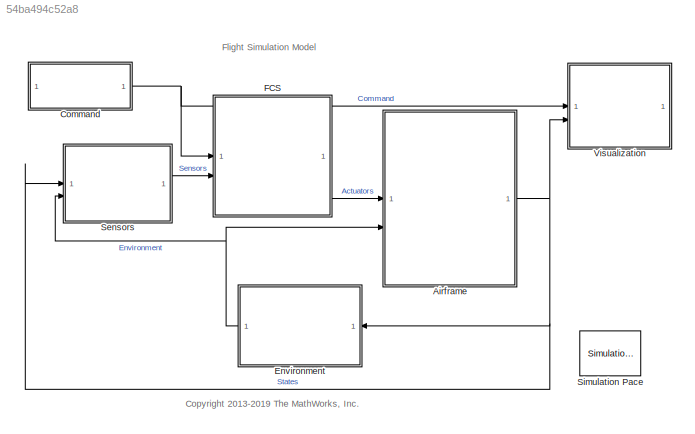
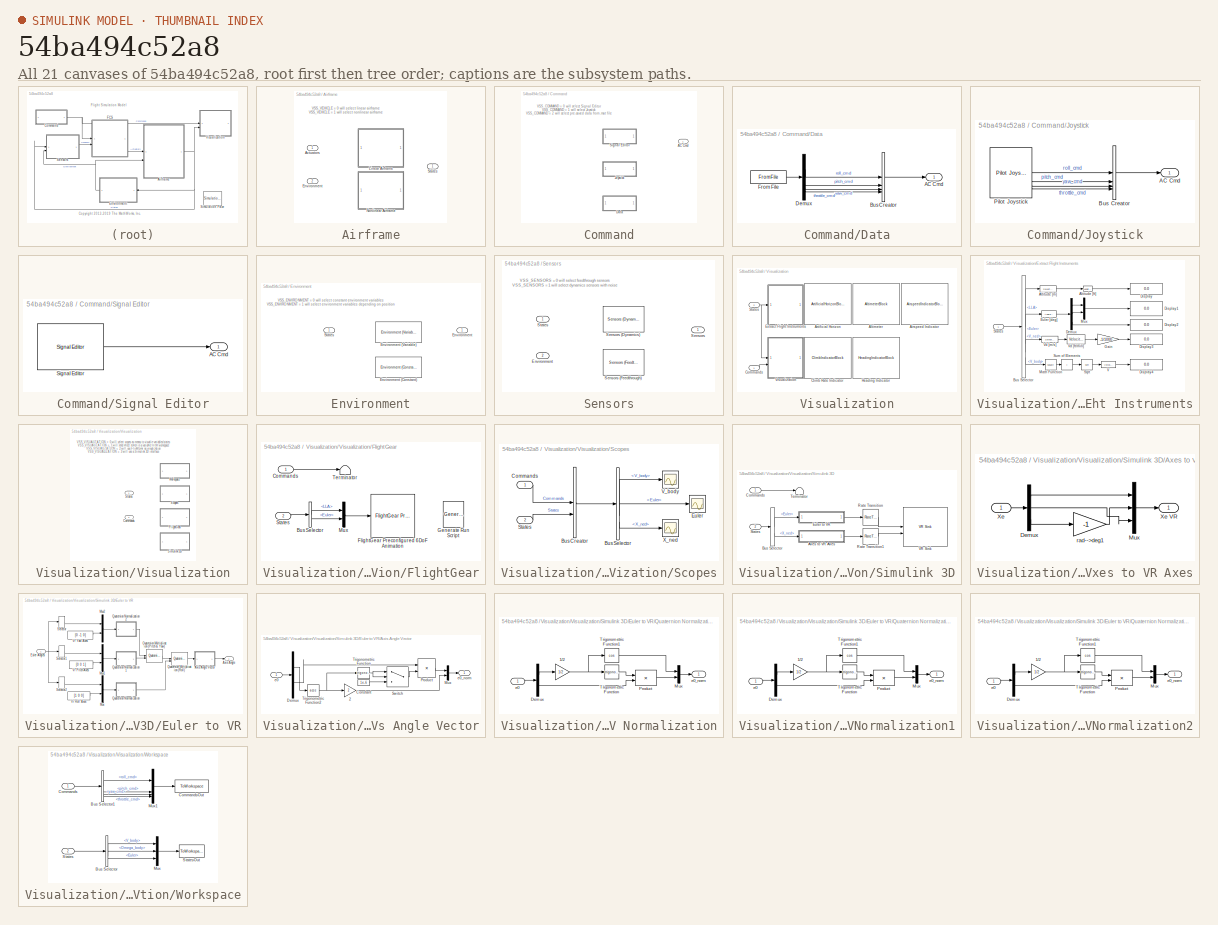
[diagram: thumbnail index - all 21 canvases of the model, root first then tree order]
MODEL slx_54ba494c52a8
KIND model
CONFIG AbsTol = auto
CONFIG EnableMultiTasking = on
CONFIG FixedStep = Ts
CONFIG MaxStep = auto
CONFIG MinStep = auto
CONFIG RelTol = 1e-3
CONFIG SampleTimeConstraint = Unconstrained
CONFIG SolverName = ode3
CONFIG StartTime = 0
CONFIG StopTime = 10
BLOCK [SubSystem] Airframe
  Variant = on
BLOCK [Inport] Airframe/Actuators
BLOCK [Inport] Airframe/Environment
  OutDataTypeStr = Bus: EnvironmentBus
  Port = 2
BLOCK [ModelReference] Airframe/Linear Airframe
  ModelNameDialog = linearAirframe.slx
  ModelReferenceVersion = 11.2
  VariantControl = VSS_VEHICLE_LINEAR
BLOCK [ModelReference] Airframe/Nonlinear Airframe
  ModelNameDialog = nonlinearAirframe.slx
  ModelReferenceVersion = 11.2
  VariantControl = VSS_VEHICLE_NONLINEAR
BLOCK [Outport] Airframe/States
  OutDataTypeStr = Bus: StatesBus
  VectorParamsAs1DForOutWhenUnconnected = off
BLOCK [SubSystem] Command
  Variant = on
BLOCK [Outport] Command/AC Cmd
  OutDataTypeStr = Bus: CommandBus
  VectorParamsAs1DForOutWhenUnconnected = off
BLOCK [SubSystem] Command/Data
  VariantControl = VSS_COMMAND_PRESAVED
BLOCK [Outport] Command/Data/AC Cmd
  OutDataTypeStr = Bus: CommandBus
  VectorParamsAs1DForOutWhenUnconnected = off
BLOCK [BusCreator] Command/Data/Bus Creator
  DisplayOption = bar
  InheritFromInputs = on
  Inputs = 4
  NonVirtualBus = on
  OutDataTypeStr = Bus: CommandBus
BLOCK [Demux] Command/Data/Demux
BLOCK [FromFile] Command/Data/From File
  FileName = cmdData.mat
  SampleTime = Ts
BLOCK [SubSystem] Command/Joystick
  VariantControl = VSS_COMMAND_JOYSTICK
BLOCK [Outport] Command/Joystick/AC Cmd
  OutDataTypeStr = Bus: CommandBus
  VectorParamsAs1DForOutWhenUnconnected = off
BLOCK [BusCreator] Command/Joystick/Bus Creator
  DisplayOption = bar
  InheritFromInputs = on
  Inputs = 4
  NonVirtualBus = on
  OutDataTypeStr = Bus: CommandBus
BLOCK [Reference] Command/Joystick/Pilot Joystick  REF=aerolibanimutils/Pilot Joystick
  SourceBlock = aerolibanimutils/Pilot Joystick
  SourceType = PilotJoystick
BLOCK [SubSystem] Command/Signal Editor
  VariantControl = VSS_COMMAND_SIGEDIT
BLOCK [Outport] Command/Signal Editor/AC Cmd
  OutDataTypeStr = Bus: CommandBus
  VectorParamsAs1DForOutWhenUnconnected = off
BLOCK [Reference] Command/Signal Editor/Signal Editor  REF=SignalEditorBlockLib/Signal Editor
  SourceBlock = SignalEditorBlockLib/Signal Editor
  SourceType = SignalEditor
  UserDataPersistent = on
BLOCK [SubSystem] Environment
  Variant = on
BLOCK [Outport] Environment/Environment
  OutDataTypeStr = Bus: EnvironmentBus
  VectorParamsAs1DForOutWhenUnconnected = off
BLOCK [Reference] Environment/Environment (Constant)  REF=environmentLibrary/Environment (Constant)
  SourceBlock = environmentLibrary/Environment (Constant)
  SourceType = SubSystem
BLOCK [Reference] Environment/Environment (Variable)  REF=environmentLibrary/Environment (Variable)
  SourceBlock = environmentLibrary/Environment (Variable)
  SourceType = SubSystem
BLOCK [Inport] Environment/States
  OutDataTypeStr = Bus: StatesBus
BLOCK [ModelReference] FCS
  ModelNameDialog = flightControlSystem.slx
  ModelReferenceVersion = 11.2
BLOCK [SubSystem] Sensors
  Variant = on
BLOCK [Inport] Sensors/Environment
  Port = 2
BLOCK [Outport] Sensors/Sensors
  VectorParamsAs1DForOutWhenUnconnected = off
BLOCK [Reference] Sensors/Sensors (Dynamics)  REF=sensorsLibrary/Sensors (Dynamics)
  SourceBlock = sensorsLibrary/Sensors (Dynamics)
BLOCK [Reference] Sensors/Sensors (Feedthrough)  REF=sensorsLibrary/Sensors (Feedthrough)
  SourceBlock = sensorsLibrary/Sensors (Feedthrough)
  SourceType = SubSystem
BLOCK [Inport] Sensors/States
BLOCK [Reference] Simulation Pace  REF=aerolibanimutils/Simulation Pace
  AttributesFormatString = %<SimulationPace> sec/sec
  Commented = on
  SourceBlock = aerolibanimutils/Simulation Pace
  SourceType = Simulation Pace
BLOCK [SubSystem] Visualization
BLOCK [AirspeedIndicatorBlock] Visualization/Airspeed Indicator
  LabelPosition = Hide
  ScaleMax = 9
  ScaleMin = 0
BLOCK [AltimeterBlock] Visualization/Altimeter
  LabelPosition = Hide
BLOCK [ArtificialHorizonBlock] Visualization/Artificial Horizon
  LabelPosition = Hide
BLOCK [ClimbIndicatorBlock] Visualization/Climb Rate Indicator
  LabelPosition = Hide
  ScaleMax = 1000
BLOCK [Inport] Visualization/Commands
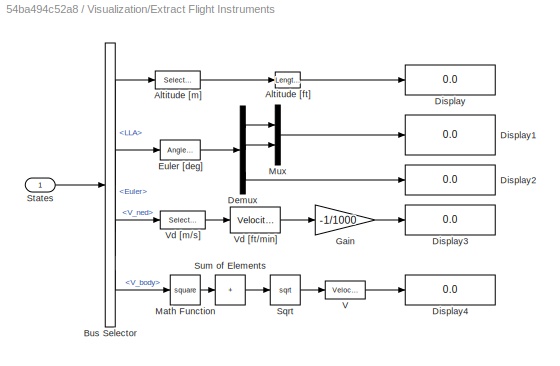
BLOCK [SubSystem] Visualization/Extract Flight Instruments
BLOCK [Reference] Visualization/Extract Flight Instruments/Altitude [ft]  REF=aerolibconvert2/Length Conversion
  SourceBlock = aerolibconvert2/Length Conversion
  SourceType = Length Conversion
BLOCK [Selector] Visualization/Extract Flight Instruments/Altitude [m]
  IndexOptions = Index vector (dialog)
  Indices = [3]
  InputPortWidth = 3
  OutputSizes = 1
BLOCK [BusSelector] Visualization/Extract Flight Instruments/Bus Selector
  OutputSignals = LLA,Euler,V_ned,V_body
BLOCK [Demux] Visualization/Extract Flight Instruments/Demux
  Outputs = 3
BLOCK [Display] Visualization/Extract Flight Instruments/Display
  Decimation = 1
BLOCK [Display] Visualization/Extract Flight Instruments/Display1
  Decimation = 1
BLOCK [Display] Visualization/Extract Flight Instruments/Display2
  Decimation = 1
BLOCK [Display] Visualization/Extract Flight Instruments/Display3
  Decimation = 1
BLOCK [Display] Visualization/Extract Flight Instruments/Display4
  Decimation = 1
BLOCK [Reference] Visualization/Extract Flight Instruments/Euler [deg]  REF=aerolibconvert2/Angle Conversion
  SourceBlock = aerolibconvert2/Angle Conversion
  SourceType = Angle Conversion
BLOCK [Gain] Visualization/Extract Flight Instruments/Gain
  Gain = -1/1000
BLOCK [Math] Visualization/Extract Flight Instruments/Math Function
  Operator = square
  SignedPower = on
BLOCK [Mux] Visualization/Extract Flight Instruments/Mux
  DisplayOption = bar
  Inputs = 2
BLOCK [Sqrt] Visualization/Extract Flight Instruments/Sqrt
BLOCK [Inport] Visualization/Extract Flight Instruments/States
BLOCK [Sum] Visualization/Extract Flight Instruments/Sum of Elements
  IconShape = rectangular
  Inputs = +
BLOCK [Reference] Visualization/Extract Flight Instruments/V  REF=aerolibconvert2/Velocity Conversion
  SourceBlock = aerolibconvert2/Velocity Conversion
  SourceType = Velocity Conversion
BLOCK [Reference] Visualization/Extract Flight Instruments/Vd [ft//min]  REF=aerolibconvert2/Velocity Conversion
  SourceBlock = aerolibconvert2/Velocity Conversion
  SourceType = Velocity Conversion
BLOCK [Selector] Visualization/Extract Flight Instruments/Vd [m//s]
  IndexOptions = Index vector (dialog)
  Indices = [3]
  InputPortWidth = 3
  OutputSizes = 1
BLOCK [HeadingIndicatorBlock] Visualization/Heading Indicator
  LabelPosition = Hide
BLOCK [Inport] Visualization/States
  Port = 2
BLOCK [SubSystem] Visualization/Visualization
  Variant = on
BLOCK [Inport] Visualization/Visualization/Commands
  OutDataTypeStr = Bus: CommandBus
  Port = 2
BLOCK [SubSystem] Visualization/Visualization/FlightGear
  VariantControl = VSS_VISUALIZATION_FLIGHTGEAR
BLOCK [BusSelector] Visualization/Visualization/FlightGear/Bus Selector
  OutputSignals = LLA,Euler
BLOCK [Inport] Visualization/Visualization/FlightGear/Commands
BLOCK [Reference] Visualization/Visualization/FlightGear/FlightGear Preconfigured 6DoF Animation  REF=aerolibfltsims/FlightGear
Preconfigured
6DoF Animation
  AttributesFormatString = Version Selected: %<xFlightGearVersion>
  SourceBlock = aerolibfltsims/FlightGear\nPreconfigured\n6DoF Animation
  SourceType = FlightGearQuick6DoFAnimation
BLOCK [Reference] Visualization/Visualization/FlightGear/Generate Run Script  REF=aerolibfltsims/Generate
Run Script
  SourceBlock = aerolibfltsims/Generate\nRun Script
  SourceType = Generate FlightGear Run Script
BLOCK [Mux] Visualization/Visualization/FlightGear/Mux
  DisplayOption = bar
  Inputs = 2
BLOCK [Inport] Visualization/Visualization/FlightGear/States
  Port = 2
BLOCK [Terminator] Visualization/Visualization/FlightGear/Terminator
BLOCK [SubSystem] Visualization/Visualization/Scopes
  VariantControl = VSS_VISUALIZATION_SCOPES
BLOCK [BusCreator] Visualization/Visualization/Scopes/Bus Creator
  DisplayOption = bar
  InheritFromInputs = on
  Inputs = 2
BLOCK [BusSelector] Visualization/Visualization/Scopes/Bus Selector
  OutputSignals = States.V_body,States.Euler,States.X_ned
BLOCK [Inport] Visualization/Visualization/Scopes/Commands
BLOCK [Scope] Visualization/Visualization/Scopes/Euler
  Floating = off
  NumInputPorts = 1
  ScopeSpecificationString = Simulink.scopes.TimeScopeBlockCfg('CurrentConfiguration', extmgr.ConfigurationSet(extmgr.Configuration('Core','General UI',true),extmgr.Configuration('Core','Source UI',true),extmgr.Configuration('Sources','WiredSimulink',true,'DataLoggingVariableName','ScopeData2','DataLoggingSaveFormat','StructureWithTime','DataLoggingDecimation','1'),extmgr.Configuration('Visuals','Time Domain',true,'Serialized...<+1593ch>
BLOCK [Inport] Visualization/Visualization/Scopes/States
  Port = 2
BLOCK [Scope] Visualization/Visualization/Scopes/V_body
  Floating = off
  NumInputPorts = 1
  ScopeSpecificationString = Simulink.scopes.TimeScopeBlockCfg('CurrentConfiguration', extmgr.ConfigurationSet(extmgr.Configuration('Core','General UI',true),extmgr.Configuration('Core','Source UI',true),extmgr.Configuration('Sources','WiredSimulink',true,'DataLoggingSaveFormat','StructureWithTime','DataLoggingDecimation','1'),extmgr.Configuration('Visuals','Time Domain',true,'SerializedDisplays',{struct('MinYLimReal','-2.968...<+1548ch>
BLOCK [Scope] Visualization/Visualization/Scopes/X_ned
  Floating = off
  NumInputPorts = 1
  ScopeSpecificationString = Simulink.scopes.TimeScopeBlockCfg('CurrentConfiguration', extmgr.ConfigurationSet(extmgr.Configuration('Core','General UI',true),extmgr.Configuration('Core','Source UI',true),extmgr.Configuration('Sources','WiredSimulink',true,'DataLoggingVariableName','ScopeData1','DataLoggingSaveFormat','StructureWithTime','DataLoggingDecimation','1'),extmgr.Configuration('Visuals','Time Domain',true,'Serialized...<+1593ch>
BLOCK [SubSystem] Visualization/Visualization/Simulink 3D
  VariantControl = VSS_VISUALIZATION_SL3D
BLOCK [SubSystem] Visualization/Visualization/Simulink 3D/Axes to VR Axes
BLOCK [Demux] Visualization/Visualization/Simulink 3D/Axes to VR Axes/Demux
  DisplayOption = none
  Outputs = 3
BLOCK [Mux] Visualization/Visualization/Simulink 3D/Axes to VR Axes/Mux
  DisplayOption = bar
  Inputs = 3
BLOCK [Inport] Visualization/Visualization/Simulink 3D/Axes to VR Axes/Xe
BLOCK [Outport] Visualization/Visualization/Simulink 3D/Axes to VR Axes/Xe VR
  VectorParamsAs1DForOutWhenUnconnected = off
BLOCK [Gain] Visualization/Visualization/Simulink 3D/Axes to VR Axes/rad-->deg1
  Gain = -1
  NameLocation = top
  OutDataTypeStr = Inherit: Same as input
  ParamDataTypeStr = Inherit: Same as input
  SaturateOnIntegerOverflow = on
BLOCK [BusSelector] Visualization/Visualization/Simulink 3D/Bus Selector
  OutputSignals = Euler,X_ned
BLOCK [Inport] Visualization/Visualization/Simulink 3D/Commands
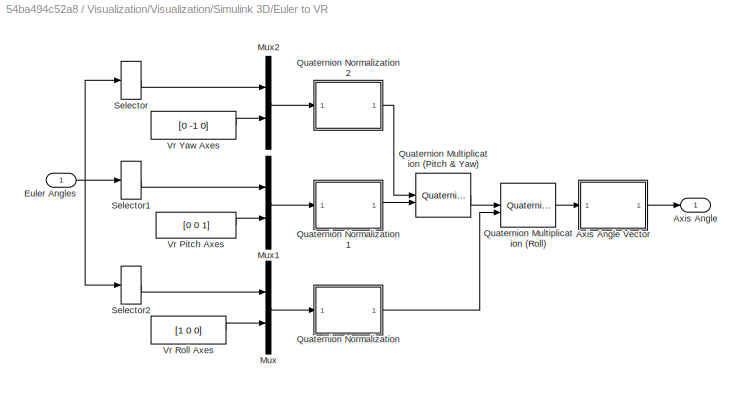
BLOCK [SubSystem] Visualization/Visualization/Simulink 3D/Euler to VR
BLOCK [Outport] Visualization/Visualization/Simulink 3D/Euler to VR/Axis Angle
  VectorParamsAs1DForOutWhenUnconnected = off
BLOCK [SubSystem] Visualization/Visualization/Simulink 3D/Euler to VR/Axis Angle Vector
BLOCK [Gain] Visualization/Visualization/Simulink 3D/Euler to VR/Axis Angle Vector/2
  Gain = 2
  OutDataTypeStr = Inherit: Same as input
  ParamDataTypeStr = Inherit: Same as input
  SaturateOnIntegerOverflow = on
BLOCK [Constant] Visualization/Visualization/Simulink 3D/Euler to VR/Axis Angle Vector/Constant
  Value = 1e-6
BLOCK [Demux] Visualization/Visualization/Simulink 3D/Euler to VR/Axis Angle Vector/Demux
  DisplayOption = none
  Outputs = [1 3 ]
BLOCK [Mux] Visualization/Visualization/Simulink 3D/Euler to VR/Axis Angle Vector/Mux
  DisplayOption = bar
  Inputs = 2
BLOCK [Product] Visualization/Visualization/Simulink 3D/Euler to VR/Axis Angle Vector/Product
  InputSameDT = on
  Inputs = */
  OutDataTypeStr = Inherit: Same as first input
  SaturateOnIntegerOverflow = on
BLOCK [Switch] Visualization/Visualization/Simulink 3D/Euler to VR/Axis Angle Vector/Switch
  Criteria = u2 ~= 0
  InputSameDT = off
  SaturateOnIntegerOverflow = off
BLOCK [Trigonometry] Visualization/Visualization/Simulink 3D/Euler to VR/Axis Angle Vector/Trigonometric Function
BLOCK [Trigonometry] Visualization/Visualization/Simulink 3D/Euler to VR/Axis Angle Vector/Trigonometric Function2
  Operator = acos
BLOCK [Inport] Visualization/Visualization/Simulink 3D/Euler to VR/Axis Angle Vector/e0
BLOCK [Outport] Visualization/Visualization/Simulink 3D/Euler to VR/Axis Angle Vector/e0_norm
  VectorParamsAs1DForOutWhenUnconnected = off
BLOCK [Inport] Visualization/Visualization/Simulink 3D/Euler to VR/Euler Angles
BLOCK [Mux] Visualization/Visualization/Simulink 3D/Euler to VR/Mux
  DisplayOption = bar
  Inputs = 2
BLOCK [Mux] Visualization/Visualization/Simulink 3D/Euler to VR/Mux1
  DisplayOption = bar
  Inputs = 2
BLOCK [Mux] Visualization/Visualization/Simulink 3D/Euler to VR/Mux2
  DisplayOption = bar
  Inputs = 2
BLOCK [Reference] Visualization/Visualization/Simulink 3D/Euler to VR/Quaternion Multiplication (Pitch & Yaw)  REF=aerolibutil/Quaternion
Multiplication
  SourceBlock = aerolibutil/Quaternion\nMultiplication
  SourceType = Quaternion Multiplication
BLOCK [Reference] Visualization/Visualization/Simulink 3D/Euler to VR/Quaternion Multiplication (Roll)  REF=aerolibutil/Quaternion
Multiplication
  SourceBlock = aerolibutil/Quaternion\nMultiplication
  SourceType = Quaternion Multiplication
BLOCK [SubSystem] Visualization/Visualization/Simulink 3D/Euler to VR/Quaternion Normalization
BLOCK [Gain] Visualization/Visualization/Simulink 3D/Euler to VR/Quaternion Normalization/1//2
  Gain = 1/2
  OutDataTypeStr = Inherit: Same as input
  ParamDataTypeStr = Inherit: Same as input
  SaturateOnIntegerOverflow = on
BLOCK [Demux] Visualization/Visualization/Simulink 3D/Euler to VR/Quaternion Normalization/Demux
  DisplayOption = none
  Outputs = [1 3]
BLOCK [Mux] Visualization/Visualization/Simulink 3D/Euler to VR/Quaternion Normalization/Mux
  DisplayOption = bar
  Inputs = 2
BLOCK [Product] Visualization/Visualization/Simulink 3D/Euler to VR/Quaternion Normalization/Product
  InputSameDT = on
  OutDataTypeStr = Inherit: Same as first input
  SaturateOnIntegerOverflow = on
BLOCK [Trigonometry] Visualization/Visualization/Simulink 3D/Euler to VR/Quaternion Normalization/Trigonometric Function
BLOCK [Trigonometry] Visualization/Visualization/Simulink 3D/Euler to VR/Quaternion Normalization/Trigonometric Function1
  Operator = cos
BLOCK [Inport] Visualization/Visualization/Simulink 3D/Euler to VR/Quaternion Normalization/e0
BLOCK [Outport] Visualization/Visualization/Simulink 3D/Euler to VR/Quaternion Normalization/e0_norm
  VectorParamsAs1DForOutWhenUnconnected = off
BLOCK [SubSystem] Visualization/Visualization/Simulink 3D/Euler to VR/Quaternion Normalization1
BLOCK [Gain] Visualization/Visualization/Simulink 3D/Euler to VR/Quaternion Normalization1/1//2
  Gain = 1/2
  OutDataTypeStr = Inherit: Same as input
  ParamDataTypeStr = Inherit: Same as input
  SaturateOnIntegerOverflow = on
BLOCK [Demux] Visualization/Visualization/Simulink 3D/Euler to VR/Quaternion Normalization1/Demux
  DisplayOption = none
  Outputs = [1 3]
BLOCK [Mux] Visualization/Visualization/Simulink 3D/Euler to VR/Quaternion Normalization1/Mux
  DisplayOption = bar
  Inputs = 2
BLOCK [Product] Visualization/Visualization/Simulink 3D/Euler to VR/Quaternion Normalization1/Product
  InputSameDT = on
  OutDataTypeStr = Inherit: Same as first input
  SaturateOnIntegerOverflow = on
BLOCK [Trigonometry] Visualization/Visualization/Simulink 3D/Euler to VR/Quaternion Normalization1/Trigonometric Function
BLOCK [Trigonometry] Visualization/Visualization/Simulink 3D/Euler to VR/Quaternion Normalization1/Trigonometric Function1
  Operator = cos
BLOCK [Inport] Visualization/Visualization/Simulink 3D/Euler to VR/Quaternion Normalization1/e0
BLOCK [Outport] Visualization/Visualization/Simulink 3D/Euler to VR/Quaternion Normalization1/e0_norm
  VectorParamsAs1DForOutWhenUnconnected = off
BLOCK [SubSystem] Visualization/Visualization/Simulink 3D/Euler to VR/Quaternion Normalization2
BLOCK [Gain] Visualization/Visualization/Simulink 3D/Euler to VR/Quaternion Normalization2/1//2
  Gain = 1/2
  OutDataTypeStr = Inherit: Same as input
  ParamDataTypeStr = Inherit: Same as input
  SaturateOnIntegerOverflow = on
BLOCK [Demux] Visualization/Visualization/Simulink 3D/Euler to VR/Quaternion Normalization2/Demux
  DisplayOption = none
  Outputs = [1 3]
BLOCK [Mux] Visualization/Visualization/Simulink 3D/Euler to VR/Quaternion Normalization2/Mux
  DisplayOption = bar
  Inputs = 2
BLOCK [Product] Visualization/Visualization/Simulink 3D/Euler to VR/Quaternion Normalization2/Product
  InputSameDT = on
  OutDataTypeStr = Inherit: Same as first input
  SaturateOnIntegerOverflow = on
BLOCK [Trigonometry] Visualization/Visualization/Simulink 3D/Euler to VR/Quaternion Normalization2/Trigonometric Function
BLOCK [Trigonometry] Visualization/Visualization/Simulink 3D/Euler to VR/Quaternion Normalization2/Trigonometric Function1
  Operator = cos
BLOCK [Inport] Visualization/Visualization/Simulink 3D/Euler to VR/Quaternion Normalization2/e0
BLOCK [Outport] Visualization/Visualization/Simulink 3D/Euler to VR/Quaternion Normalization2/e0_norm
  VectorParamsAs1DForOutWhenUnconnected = off
BLOCK [Selector] Visualization/Visualization/Simulink 3D/Euler to VR/Selector
  IndexOptions = Index vector (dialog)
  Indices = [3]
  InputPortWidth = 3
  OutputSizes = 1
BLOCK [Selector] Visualization/Visualization/Simulink 3D/Euler to VR/Selector1
  IndexOptions = Index vector (dialog)
  Indices = [2]
  InputPortWidth = 3
  OutputSizes = 1
BLOCK [Selector] Visualization/Visualization/Simulink 3D/Euler to VR/Selector2
  IndexOptions = Index vector (dialog)
  Indices = [1]
  InputPortWidth = 3
  OutputSizes = 1
BLOCK [Constant] Visualization/Visualization/Simulink 3D/Euler to VR/Vr Pitch Axes
  NameLocation = top
  Value = [0 0 1]
BLOCK [Constant] Visualization/Visualization/Simulink 3D/Euler to VR/Vr Roll Axes
  NameLocation = top
  Value = [1 0 0]
BLOCK [Constant] Visualization/Visualization/Simulink 3D/Euler to VR/Vr Yaw Axes
  Value = [0 -1 0]
BLOCK [RateTransition] Visualization/Visualization/Simulink 3D/Rate Transition
BLOCK [RateTransition] Visualization/Visualization/Simulink 3D/Rate Transition1
BLOCK [Inport] Visualization/Visualization/Simulink 3D/States
  Port = 2
BLOCK [Terminator] Visualization/Visualization/Simulink 3D/Terminator
BLOCK [Reference] Visualization/Visualization/Simulink 3D/VR Sink  REF=vrlib/VR Sink
  InstantiateOnLoad = on
  SourceBlock = vrlib/VR Sink
  SourceType = Virtual Reality Sink
BLOCK [Inport] Visualization/Visualization/States
  OutDataTypeStr = Bus: StatesBus
BLOCK [SubSystem] Visualization/Visualization/Workspace
  VariantControl = VSS_VISUALIZATION_WORKSPACE
BLOCK [BusSelector] Visualization/Visualization/Workspace/Bus Selector
  OutputSignals = V_body,Omega_body,Euler
BLOCK [BusSelector] Visualization/Visualization/Workspace/Bus Selector1
  OutputSignals = roll_cmd,pitch_cmd,yaw_cmd,throttle_cmd
BLOCK [Inport] Visualization/Visualization/Workspace/Commands
BLOCK [ToWorkspace] Visualization/Visualization/Workspace/CommandsOut
  MaxDataPoints = inf
  SampleTime = -1
  SaveFormat = Structure With Time
  VariableName = CommandsOut
BLOCK [Mux] Visualization/Visualization/Workspace/Mux
  DisplayOption = bar
  Inputs = 3
BLOCK [Mux] Visualization/Visualization/Workspace/Mux1
  DisplayOption = bar
BLOCK [Inport] Visualization/Visualization/Workspace/States
  Port = 2
BLOCK [ToWorkspace] Visualization/Visualization/Workspace/StatesOut
  MaxDataPoints = inf
  SampleTime = -1
  SaveFormat = Structure With Time
  VariableName = statesOut
ANNOTATION (root): <copyright redacted>
ANNOTATION (root): Flight Simulation Model
ANNOTATION Airframe: VSS_VEHICLE = 0 will select linear airframe VSS_VEHICLE = 1 will select nonlinear airframe
ANNOTATION Command: VSS_COMMAND = 0 will select Signal Editor VSS_COMMAND = 1 will select Joystick VSS_COMMAND = 2 will select pre-saved data from .mat file
ANNOTATION Environment: VSS_ENVIRONMENT = 0 will select constant environment variables VSS_ENVIRONMENT = 1 will select environment variables depending on position
ANNOTATION Sensors: VSS_SENSORS = 0 will select feedthrough sensors VSS_SENSORS = 1 will select dynamics sensors with noise
ANNOTATION Visualization/Visualization: VSS_VISUALIZATION = 0 will select scopes as means to visualie variables/states VSS_VISUALIZATION = 1 will send select states in a variable to the workspace VSS_VISUALIZATION = 2 will use FlightGear as visualization VSS_VISUALIZATION = 3 will use a Simulink 3D interface
NET Airframe:1 -> Environment:1, Sensors:1, Visualization:2
LINE Command/Data/Bus Creator:1 -> Command/Data/AC Cmd:1
LINE Command/Data/Demux:1 -> Command/Data/Bus Creator:1
LINE Command/Data/Demux:2 -> Command/Data/Bus Creator:2
LINE Command/Data/Demux:3 -> Command/Data/Bus Creator:3
LINE Command/Data/Demux:4 -> Command/Data/Bus Creator:4
LINE Command/Data/From File:1 -> Command/Data/Demux:1
LINE Command/Joystick/Bus Creator:1 -> Command/Joystick/AC Cmd:1
LINE Command/Joystick/Pilot Joystick:1 -> Command/Joystick/Bus Creator:1
LINE Command/Joystick/Pilot Joystick:2 -> Command/Joystick/Bus Creator:2
LINE Command/Joystick/Pilot Joystick:3 -> Command/Joystick/Bus Creator:3
LINE Command/Joystick/Pilot Joystick:4 -> Command/Joystick/Bus Creator:4
LINE Command/Signal Editor/Signal Editor:1 -> Command/Signal Editor/AC Cmd:1
NET Command:1 -> FCS:1, Visualization:1
NET Environment:1 -> Airframe:2, Sensors:2
LINE FCS:1 -> Airframe:1
LINE Sensors:1 -> FCS:2
LINE Visualization/Commands:1 -> Visualization/Visualization:2
LINE Visualization/Extract Flight Instruments/Altitude [ft]:1 -> Visualization/Extract Flight Instruments/Display:1
LINE Visualization/Extract Flight Instruments/Altitude [m]:1 -> Visualization/Extract Flight Instruments/Altitude [ft]:1
LINE Visualization/Extract Flight Instruments/Bus Selector:1 -> Visualization/Extract Flight Instruments/Altitude [m]:1
LINE Visualization/Extract Flight Instruments/Bus Selector:2 -> Visualization/Extract Flight Instruments/Euler [deg]:1
LINE Visualization/Extract Flight Instruments/Bus Selector:3 -> Visualization/Extract Flight Instruments/Vd [m//s]:1
LINE Visualization/Extract Flight Instruments/Bus Selector:4 -> Visualization/Extract Flight Instruments/Math Function:1
LINE Visualization/Extract Flight Instruments/Demux:1 -> Visualization/Extract Flight Instruments/Mux:1
LINE Visualization/Extract Flight Instruments/Demux:2 -> Visualization/Extract Flight Instruments/Mux:2
LINE Visualization/Extract Flight Instruments/Demux:3 -> Visualization/Extract Flight Instruments/Display2:1
LINE Visualization/Extract Flight Instruments/Euler [deg]:1 -> Visualization/Extract Flight Instruments/Demux:1
LINE Visualization/Extract Flight Instruments/Gain:1 -> Visualization/Extract Flight Instruments/Display3:1
LINE Visualization/Extract Flight Instruments/Math Function:1 -> Visualization/Extract Flight Instruments/Sum of Elements:1
LINE Visualization/Extract Flight Instruments/Mux:1 -> Visualization/Extract Flight Instruments/Display1:1
LINE Visualization/Extract Flight Instruments/Sqrt:1 -> Visualization/Extract Flight Instruments/V:1
LINE Visualization/Extract Flight Instruments/States:1 -> Visualization/Extract Flight Instruments/Bus Selector:1
LINE Visualization/Extract Flight Instruments/Sum of Elements:1 -> Visualization/Extract Flight Instruments/Sqrt:1
LINE Visualization/Extract Flight Instruments/V:1 -> Visualization/Extract Flight Instruments/Display4:1
LINE Visualization/Extract Flight Instruments/Vd [ft//min]:1 -> Visualization/Extract Flight Instruments/Gain:1
LINE Visualization/Extract Flight Instruments/Vd [m//s]:1 -> Visualization/Extract Flight Instruments/Vd [ft//min]:1
NET Visualization/States:1 -> Visualization/Extract Flight Instruments:1, Visualization/Visualization:1
LINE Visualization/Visualization/FlightGear/Bus Selector:1 -> Visualization/Visualization/FlightGear/Mux:1
LINE Visualization/Visualization/FlightGear/Bus Selector:2 -> Visualization/Visualization/FlightGear/Mux:2
LINE Visualization/Visualization/FlightGear/Commands:1 -> Visualization/Visualization/FlightGear/Terminator:1
LINE Visualization/Visualization/FlightGear/Mux:1 -> Visualization/Visualization/FlightGear/FlightGear Preconfigured 6DoF Animation:1
LINE Visualization/Visualization/FlightGear/States:1 -> Visualization/Visualization/FlightGear/Bus Selector:1
LINE Visualization/Visualization/Scopes/Bus Creator:1 -> Visualization/Visualization/Scopes/Bus Selector:1
LINE Visualization/Visualization/Scopes/Bus Selector:1 -> Visualization/Visualization/Scopes/V_body:1
LINE Visualization/Visualization/Scopes/Bus Selector:2 -> Visualization/Visualization/Scopes/Euler:1
LINE Visualization/Visualization/Scopes/Bus Selector:3 -> Visualization/Visualization/Scopes/X_ned:1
LINE Visualization/Visualization/Scopes/Commands:1 -> Visualization/Visualization/Scopes/Bus Creator:1
LINE Visualization/Visualization/Scopes/States:1 -> Visualization/Visualization/Scopes/Bus Creator:2
LINE Visualization/Visualization/Simulink 3D/Axes to VR Axes/Demux:1 -> Visualization/Visualization/Simulink 3D/Axes to VR Axes/Mux:1
LINE Visualization/Visualization/Simulink 3D/Axes to VR Axes/Demux:2 -> Visualization/Visualization/Simulink 3D/Axes to VR Axes/Mux:3
LINE Visualization/Visualization/Simulink 3D/Axes to VR Axes/Demux:3 -> Visualization/Visualization/Simulink 3D/Axes to VR Axes/rad-->deg1:1
LINE Visualization/Visualization/Simulink 3D/Axes to VR Axes/Mux:1 -> Visualization/Visualization/Simulink 3D/Axes to VR Axes/Xe VR:1
LINE Visualization/Visualization/Simulink 3D/Axes to VR Axes/Xe:1 -> Visualization/Visualization/Simulink 3D/Axes to VR Axes/Demux:1
LINE Visualization/Visualization/Simulink 3D/Axes to VR Axes/rad-->deg1:1 -> Visualization/Visualization/Simulink 3D/Axes to VR Axes/Mux:2
LINE Visualization/Visualization/Simulink 3D/Axes to VR Axes:1 -> Visualization/Visualization/Simulink 3D/Rate Transition1:1
LINE Visualization/Visualization/Simulink 3D/Bus Selector:1 -> Visualization/Visualization/Simulink 3D/Euler to VR:1
LINE Visualization/Visualization/Simulink 3D/Bus Selector:2 -> Visualization/Visualization/Simulink 3D/Axes to VR Axes:1
LINE Visualization/Visualization/Simulink 3D/Commands:1 -> Visualization/Visualization/Simulink 3D/Terminator:1
LINE Visualization/Visualization/Simulink 3D/Euler to VR/Axis Angle Vector/2:1 -> Visualization/Visualization/Simulink 3D/Euler to VR/Axis Angle Vector/Mux:2
LINE Visualization/Visualization/Simulink 3D/Euler to VR/Axis Angle Vector/Constant:1 -> Visualization/Visualization/Simulink 3D/Euler to VR/Axis Angle Vector/Switch:3
LINE Visualization/Visualization/Simulink 3D/Euler to VR/Axis Angle Vector/Demux:1 -> Visualization/Visualization/Simulink 3D/Euler to VR/Axis Angle Vector/Trigonometric Function2:1
LINE Visualization/Visualization/Simulink 3D/Euler to VR/Axis Angle Vector/Demux:2 -> Visualization/Visualization/Simulink 3D/Euler to VR/Axis Angle Vector/Product:1
LINE Visualization/Visualization/Simulink 3D/Euler to VR/Axis Angle Vector/Mux:1 -> Visualization/Visualization/Simulink 3D/Euler to VR/Axis Angle Vector/e0_norm:1
LINE Visualization/Visualization/Simulink 3D/Euler to VR/Axis Angle Vector/Product:1 -> Visualization/Visualization/Simulink 3D/Euler to VR/Axis Angle Vector/Mux:1
LINE Visualization/Visualization/Simulink 3D/Euler to VR/Axis Angle Vector/Switch:1 -> Visualization/Visualization/Simulink 3D/Euler to VR/Axis Angle Vector/Product:2
NET Visualization/Visualization/Simulink 3D/Euler to VR/Axis Angle Vector/Trigonometric Function2:1 -> Visualization/Visualization/Simulink 3D/Euler to VR/Axis Angle Vector/2:1, Visualization/Visualization/Simulink 3D/Euler to VR/Axis Angle Vector/Trigonometric Function:1
NET Visualization/Visualization/Simulink 3D/Euler to VR/Axis Angle Vector/Trigonometric Function:1 -> Visualization/Visualization/Simulink 3D/Euler to VR/Axis Angle Vector/Switch:1, Visualization/Visualization/Simulink 3D/Euler to VR/Axis Angle Vector/Switch:2
LINE Visualization/Visualization/Simulink 3D/Euler to VR/Axis Angle Vector/e0:1 -> Visualization/Visualization/Simulink 3D/Euler to VR/Axis Angle Vector/Demux:1
LINE Visualization/Visualization/Simulink 3D/Euler to VR/Axis Angle Vector:1 -> Visualization/Visualization/Simulink 3D/Euler to VR/Axis Angle:1
NET Visualization/Visualization/Simulink 3D/Euler to VR/Euler Angles:1 -> Visualization/Visualization/Simulink 3D/Euler to VR/Selector1:1, Visualization/Visualization/Simulink 3D/Euler to VR/Selector2:1, Visualization/Visualization/Simulink 3D/Euler to VR/Selector:1
LINE Visualization/Visualization/Simulink 3D/Euler to VR/Mux1:1 -> Visualization/Visualization/Simulink 3D/Euler to VR/Quaternion Normalization1:1
LINE Visualization/Visualization/Simulink 3D/Euler to VR/Mux2:1 -> Visualization/Visualization/Simulink 3D/Euler to VR/Quaternion Normalization2:1
LINE Visualization/Visualization/Simulink 3D/Euler to VR/Mux:1 -> Visualization/Visualization/Simulink 3D/Euler to VR/Quaternion Normalization:1
LINE Visualization/Visualization/Simulink 3D/Euler to VR/Quaternion Multiplication (Pitch & Yaw):1 -> Visualization/Visualization/Simulink 3D/Euler to VR/Quaternion Multiplication (Roll):1
LINE Visualization/Visualization/Simulink 3D/Euler to VR/Quaternion Multiplication (Roll):1 -> Visualization/Visualization/Simulink 3D/Euler to VR/Axis Angle Vector:1
NET Visualization/Visualization/Simulink 3D/Euler to VR/Quaternion Normalization/1//2:1 -> Visualization/Visualization/Simulink 3D/Euler to VR/Quaternion Normalization/Trigonometric Function1:1, Visualization/Visualization/Simulink 3D/Euler to VR/Quaternion Normalization/Trigonometric Function:1
LINE Visualization/Visualization/Simulink 3D/Euler to VR/Quaternion Normalization/Demux:1 -> Visualization/Visualization/Simulink 3D/Euler to VR/Quaternion Normalization/1//2:1
LINE Visualization/Visualization/Simulink 3D/Euler to VR/Quaternion Normalization/Demux:2 -> Visualization/Visualization/Simulink 3D/Euler to VR/Quaternion Normalization/Product:2
LINE Visualization/Visualization/Simulink 3D/Euler to VR/Quaternion Normalization/Mux:1 -> Visualization/Visualization/Simulink 3D/Euler to VR/Quaternion Normalization/e0_norm:1
LINE Visualization/Visualization/Simulink 3D/Euler to VR/Quaternion Normalization/Product:1 -> Visualization/Visualization/Simulink 3D/Euler to VR/Quaternion Normalization/Mux:2
LINE Visualization/Visualization/Simulink 3D/Euler to VR/Quaternion Normalization/Trigonometric Function1:1 -> Visualization/Visualization/Simulink 3D/Euler to VR/Quaternion Normalization/Mux:1
LINE Visualization/Visualization/Simulink 3D/Euler to VR/Quaternion Normalization/Trigonometric Function:1 -> Visualization/Visualization/Simulink 3D/Euler to VR/Quaternion Normalization/Product:1
LINE Visualization/Visualization/Simulink 3D/Euler to VR/Quaternion Normalization/e0:1 -> Visualization/Visualization/Simulink 3D/Euler to VR/Quaternion Normalization/Demux:1
NET Visualization/Visualization/Simulink 3D/Euler to VR/Quaternion Normalization1/1//2:1 -> Visualization/Visualization/Simulink 3D/Euler to VR/Quaternion Normalization1/Trigonometric Function1:1, Visualization/Visualization/Simulink 3D/Euler to VR/Quaternion Normalization1/Trigonometric Function:1
LINE Visualization/Visualization/Simulink 3D/Euler to VR/Quaternion Normalization1/Demux:1 -> Visualization/Visualization/Simulink 3D/Euler to VR/Quaternion Normalization1/1//2:1
LINE Visualization/Visualization/Simulink 3D/Euler to VR/Quaternion Normalization1/Demux:2 -> Visualization/Visualization/Simulink 3D/Euler to VR/Quaternion Normalization1/Product:2
LINE Visualization/Visualization/Simulink 3D/Euler to VR/Quaternion Normalization1/Mux:1 -> Visualization/Visualization/Simulink 3D/Euler to VR/Quaternion Normalization1/e0_norm:1
LINE Visualization/Visualization/Simulink 3D/Euler to VR/Quaternion Normalization1/Product:1 -> Visualization/Visualization/Simulink 3D/Euler to VR/Quaternion Normalization1/Mux:2
LINE Visualization/Visualization/Simulink 3D/Euler to VR/Quaternion Normalization1/Trigonometric Function1:1 -> Visualization/Visualization/Simulink 3D/Euler to VR/Quaternion Normalization1/Mux:1
LINE Visualization/Visualization/Simulink 3D/Euler to VR/Quaternion Normalization1/Trigonometric Function:1 -> Visualization/Visualization/Simulink 3D/Euler to VR/Quaternion Normalization1/Product:1
LINE Visualization/Visualization/Simulink 3D/Euler to VR/Quaternion Normalization1/e0:1 -> Visualization/Visualization/Simulink 3D/Euler to VR/Quaternion Normalization1/Demux:1
LINE Visualization/Visualization/Simulink 3D/Euler to VR/Quaternion Normalization1:1 -> Visualization/Visualization/Simulink 3D/Euler to VR/Quaternion Multiplication (Pitch & Yaw):2
NET Visualization/Visualization/Simulink 3D/Euler to VR/Quaternion Normalization2/1//2:1 -> Visualization/Visualization/Simulink 3D/Euler to VR/Quaternion Normalization2/Trigonometric Function1:1, Visualization/Visualization/Simulink 3D/Euler to VR/Quaternion Normalization2/Trigonometric Function:1
LINE Visualization/Visualization/Simulink 3D/Euler to VR/Quaternion Normalization2/Demux:1 -> Visualization/Visualization/Simulink 3D/Euler to VR/Quaternion Normalization2/1//2:1
LINE Visualization/Visualization/Simulink 3D/Euler to VR/Quaternion Normalization2/Demux:2 -> Visualization/Visualization/Simulink 3D/Euler to VR/Quaternion Normalization2/Product:2
LINE Visualization/Visualization/Simulink 3D/Euler to VR/Quaternion Normalization2/Mux:1 -> Visualization/Visualization/Simulink 3D/Euler to VR/Quaternion Normalization2/e0_norm:1
LINE Visualization/Visualization/Simulink 3D/Euler to VR/Quaternion Normalization2/Product:1 -> Visualization/Visualization/Simulink 3D/Euler to VR/Quaternion Normalization2/Mux:2
LINE Visualization/Visualization/Simulink 3D/Euler to VR/Quaternion Normalization2/Trigonometric Function1:1 -> Visualization/Visualization/Simulink 3D/Euler to VR/Quaternion Normalization2/Mux:1
LINE Visualization/Visualization/Simulink 3D/Euler to VR/Quaternion Normalization2/Trigonometric Function:1 -> Visualization/Visualization/Simulink 3D/Euler to VR/Quaternion Normalization2/Product:1
LINE Visualization/Visualization/Simulink 3D/Euler to VR/Quaternion Normalization2/e0:1 -> Visualization/Visualization/Simulink 3D/Euler to VR/Quaternion Normalization2/Demux:1
LINE Visualization/Visualization/Simulink 3D/Euler to VR/Quaternion Normalization2:1 -> Visualization/Visualization/Simulink 3D/Euler to VR/Quaternion Multiplication (Pitch & Yaw):1
LINE Visualization/Visualization/Simulink 3D/Euler to VR/Quaternion Normalization:1 -> Visualization/Visualization/Simulink 3D/Euler to VR/Quaternion Multiplication (Roll):2
LINE Visualization/Visualization/Simulink 3D/Euler to VR/Selector1:1 -> Visualization/Visualization/Simulink 3D/Euler to VR/Mux1:1
LINE Visualization/Visualization/Simulink 3D/Euler to VR/Selector2:1 -> Visualization/Visualization/Simulink 3D/Euler to VR/Mux:1
LINE Visualization/Visualization/Simulink 3D/Euler to VR/Selector:1 -> Visualization/Visualization/Simulink 3D/Euler to VR/Mux2:1
LINE Visualization/Visualization/Simulink 3D/Euler to VR/Vr Pitch Axes:1 -> Visualization/Visualization/Simulink 3D/Euler to VR/Mux1:2
LINE Visualization/Visualization/Simulink 3D/Euler to VR/Vr Roll Axes:1 -> Visualization/Visualization/Simulink 3D/Euler to VR/Mux:2
LINE Visualization/Visualization/Simulink 3D/Euler to VR/Vr Yaw Axes:1 -> Visualization/Visualization/Simulink 3D/Euler to VR/Mux2:2
LINE Visualization/Visualization/Simulink 3D/Euler to VR:1 -> Visualization/Visualization/Simulink 3D/Rate Transition:1
LINE Visualization/Visualization/Simulink 3D/Rate Transition1:1 -> Visualization/Visualization/Simulink 3D/VR Sink:2
LINE Visualization/Visualization/Simulink 3D/Rate Transition:1 -> Visualization/Visualization/Simulink 3D/VR Sink:1
LINE Visualization/Visualization/Simulink 3D/States:1 -> Visualization/Visualization/Simulink 3D/Bus Selector:1
LINE Visualization/Visualization/Workspace/Bus Selector1:1 -> Visualization/Visualization/Workspace/Mux1:1
LINE Visualization/Visualization/Workspace/Bus Selector1:2 -> Visualization/Visualization/Workspace/Mux1:2
LINE Visualization/Visualization/Workspace/Bus Selector1:3 -> Visualization/Visualization/Workspace/Mux1:3
LINE Visualization/Visualization/Workspace/Bus Selector1:4 -> Visualization/Visualization/Workspace/Mux1:4
LINE Visualization/Visualization/Workspace/Bus Selector:1 -> Visualization/Visualization/Workspace/Mux:1
LINE Visualization/Visualization/Workspace/Bus Selector:2 -> Visualization/Visualization/Workspace/Mux:2
LINE Visualization/Visualization/Workspace/Bus Selector:3 -> Visualization/Visualization/Workspace/Mux:3
LINE Visualization/Visualization/Workspace/Commands:1 -> Visualization/Visualization/Workspace/Bus Selector1:1
LINE Visualization/Visualization/Workspace/Mux1:1 -> Visualization/Visualization/Workspace/CommandsOut:1
LINE Visualization/Visualization/Workspace/Mux:1 -> Visualization/Visualization/Workspace/StatesOut:1
LINE Visualization/Visualization/Workspace/States:1 -> Visualization/Visualization/Workspace/Bus Selector:1
note: NET lines group one-source signal fan-out (src -> all destinations, sorted); 1:1 wires keep LINE
